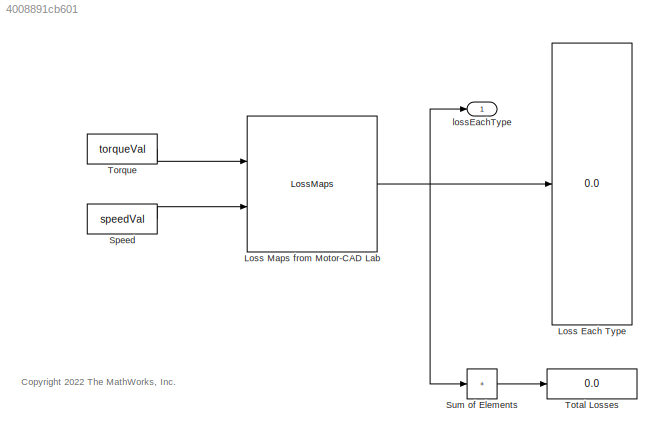
MODEL slx_4008891cb601
KIND model
CONFIG AbsTol = auto
CONFIG EnableMultiTasking = off
CONFIG FixedStep = auto
CONFIG MaxStep = auto
CONFIG MinStep = auto
CONFIG RelTol = 1e-3
CONFIG SampleTimeConstraint = Unconstrained
CONFIG SolverName = VariableStepAuto
CONFIG StartTime = 0.0
CONFIG StopTime = 10.0
WORKSPACE source: mxarray member
WORKSPACE AdjacencyMat = [0 0 0 0 0 0 0 0 0 0 0 0 ... (15129 elements, 123x123)]
WORKSPACE AmatND = [-2.65077937969e-20 -2.66038954729e-20 -2.67754578621e-20 -2.65078353535e-20 -2.66039370332e-20 -2.677549943e-20 -2.6507849929e-20 -2.660395161e-20 -2.67755140094e-20 -2.63787781554e-20 -2.64749060874e-20 -2.66465404e-20 ... (1633932 elements, 3x3x3x2x2x123x123)]
WORKSPACE BkptsStruct: object (value not decoded)
WORKSPACE BmatND = [1e-20 1e-20 1e-20 1e-20 1e-20 1e-20 1e-20 1e-20 1e-20 1e-20 1e-20 1e-20 ... (1633932 elements, 3x3x3x2x2x123x123)]
WORKSPACE CapMat = [1e+20 2196.70091586 387.653102799 193.8265514 1962.34710525 387.653102799 193.8265514 1962.34710525 1266.59353814 268.053957132 416.539515956 175.715078 ... (123 elements, 123x1)]
WORKSPACE CoolantArrayIdxs = [20 21 22 23 24 25 26 27 35 36 37 84 ... (19 elements, 19x1)]
WORKSPACE Friction_Loss_Mat = [0 0 0 0 0 0 0 0 0 0 0 0 ... (2340 elements, 39x60)]
WORKSPACE InletCoolIdxs = [37 38]
WORKSPACE Iron_Loss_Rotor_Back_Iron_Mat = [0.0117705351991 0.0191199073272 0.027445349141 0.0367468606406 0.0470244418259 0.058278092697 0.0705078132537 0.0837136034962 0.0978954634244 0.113053393038 0.129187392338 0.146297461323 ... (2340 elements, 39x60)]
WORKSPACE Iron_Loss_Rotor_Pole_Mat = [1.45649756865 2.73308858082 4.37524107823 6.38295506088 8.75623052876 11.4950674819 14.5994659202 18.0694258438 21.9049472526 26.1060301467 30.672674526 35.6048803905 ... (2340 elements, 39x60)]
WORKSPACE Iron_Loss_Rotor_Tooth_Mat = [0 0 0 0 0 0 0 0 0 0 0 0 ... (2340 elements, 39x60)]
WORKSPACE Iron_Loss_Stator_Back_Iron_Mat = [38.5419456951 60.2019391448 83.4546129961 108.299967249 134.738001903 162.768716959 192.392112416 223.608188275 256.416944535 290.818381197 326.81249826 364.399295724 ... (2340 elements, 39x60)]
WORKSPACE Iron_Loss_Stator_Tooth_Mat = [42.0610884508 66.4921951458 93.1903434872 122.155533475 153.387765109 186.88703839 222.653353317 260.686709891 300.98710811 343.554547977 388.389029489 435.490552649 ... (2340 elements, 39x60)]
WORKSPACE LossDistrForEachType = [0 0 0 0 0 0 0 0 0 0 0 0 ... (1968 elements, 16x123)]
WORKSPACE Magnet_Loss_Mat = [0.0995193918038 0.21922656949 0.383923994091 0.592930489194 0.845728039973 1.14189916514 1.4810945944 1.863014369 2.28739582812 2.7540054971 3.26263335352 3.81308862512 ... (2340 elements, 39x60)]
WORKSPACE OutletCoolIdxs = [20 107]
WORKSPACE ResMatND = [0 0 0 0 0 0 0 0 0 0 0 0 ... (1633932 elements, 3x3x3x2x2x123x123)]
WORKSPACE Rotor_Cage_Loss_Mat = [0 0 0 0 0 0 0 0 0 0 0 0 ... (2340 elements, 39x60)]
WORKSPACE ShaftTorqueVec = [-287.262157301 -272.268610731 -257.275064161 -242.281517591 -227.287971021 -212.294424451 -197.300877881 -182.307331311 -167.31378474 -152.32023817 -137.3266916 -122.33314503 ... (39 elements, 1x39)]
WORKSPACE SpeedVec = [500 661.016949153 822.033898305 983.050847458 1144.06779661 1305.08474576 1466.10169492 1627.11864407 1788.13559322 1949.15254237 2110.16949153 2271.18644068 ... (60 elements, 1x60)]
WORKSPACE StatorCopperTempCoefResistivity = 0.00393
WORKSPACE Stator_Copper_Loss_Mat = [3925.33912093 3510.19452231 3089.33767218 2711.80000483 2370.99356953 2062.06508217 1781.35176729 1526.02799256 1293.87708125 1083.15658499 892.54525431 720.809889245 ... (2340 elements, 39x60)]
WORKSPACE Stray_Load_Loss_Mat = [0 0 0 0 0 0 0 0 0 0 0 0 ... (2340 elements, 39x60)]
WORKSPACE Tgiven = 20
WORKSPACE TnodesInit = [25 25 25 25 25 25 25 25 25 25 25 25 ... (123 elements, 123x1)]
WORKSPACE Windage_Loss_Mat = [0 0 0 0 0 0 0 0 0 0 0 0 ... (2340 elements, 39x60)]
WORKSPACE speedVal = 2000
WORKSPACE torqueVal = 20
BLOCK [Display] Loss Each Type
  Decimation = 1
  Ports = [1]
BLOCK [Reference] Loss Maps from Motor-CAD Lab  REF=mcadROM_lib/LossMaps
  Ports = [2, 1]
  SourceBlock = mcadROM_lib/LossMaps
BLOCK [Constant] Speed
  Value = speedVal
BLOCK [Sum] Sum of Elements
  IconShape = rectangular
  Inputs = +
  Ports = [1, 1]
BLOCK [Constant] Torque
  Value = torqueVal
BLOCK [Display] Total Losses
  Decimation = 1
  Ports = [1]
BLOCK [Outport] lossEachType
ANNOTATION (root): <copyright redacted>
NET Loss Maps from Motor-CAD Lab:1 -> Loss Each Type:1, Sum of Elements:1, lossEachType:1
LINE Speed:1 -> Loss Maps from Motor-CAD Lab:2
LINE Sum of Elements:1 -> Total Losses:1
LINE Torque:1 -> Loss Maps from Motor-CAD Lab:1
note: NET lines group one-source signal fan-out (src -> all destinations, sorted); 1:1 wires keep LINE
